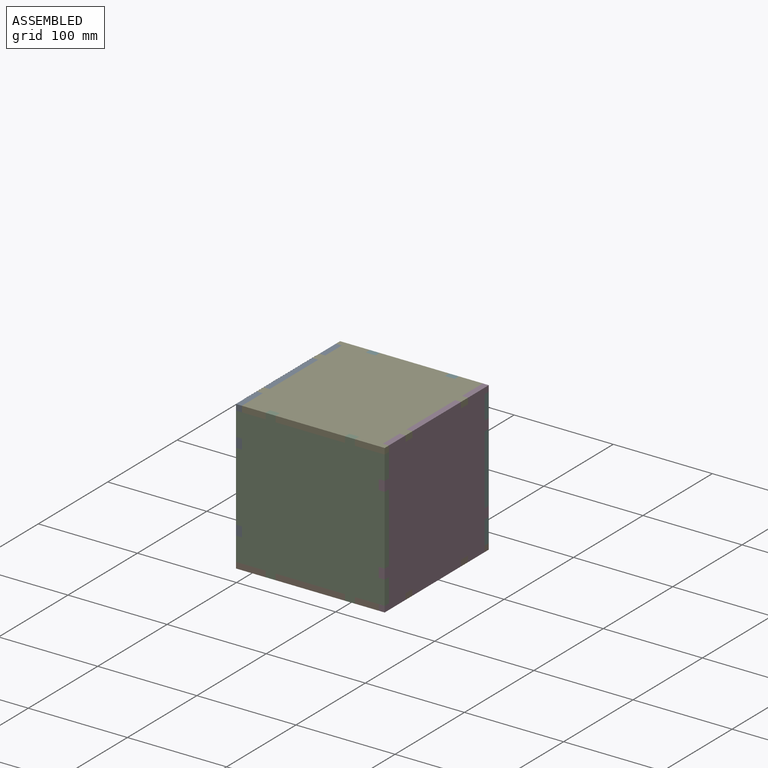
[diagram: assembled view]
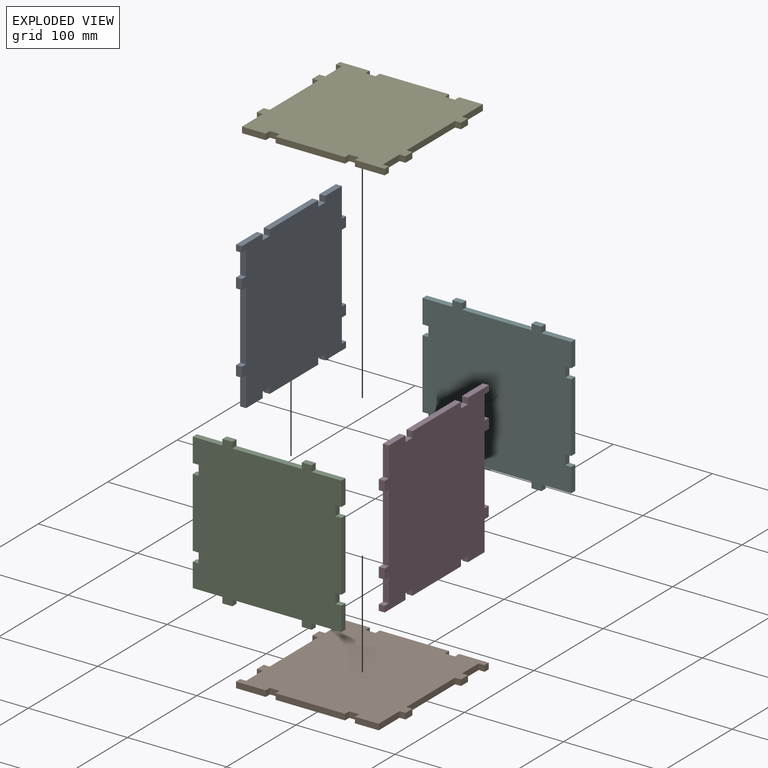
[diagram: exploded view]
GUIDED TOUR — MATED ASSEMBLY (Onshape document f970d1bed0f2af47fee9d589, AutoMate assembly f970d1bed0f2af47fee9d589_2a133aeb007b5c8988a93e6d_3a71e42d51a8dad765424fb4_default)

This assembly has 6 components, labeled P0..P5 below (a component is one placed occurrence of a part; the same part can appear more than once), held together by 5 mates. A mate is a constraint between two components; its type names the relative motion it leaves free:
  FASTENED — locks the two components together rigidly (no relative motion).
Axis/direction vectors are unit vectors and 'through' points are millimeter coordinates, both in the assembly's world frame.

MATES
  1. FASTENED "Fastened 1": P4 <-> P3, direction (0.000, 0.000, -1.000) through (72.96, -41.31, 140.80) mm
  2. FASTENED "Fastened 5": P2 <-> P4, direction (0.000, 1.000, 0.000) through (37.96, -70.31, 146.80) mm
  3. FASTENED "Fastened 2": P3 <-> P1, direction (0.000, 0.000, -1.000) through (72.96, -41.31, 2.80) mm
  4. FASTENED "Fastened 4": P0 <-> P1, direction (0.000, 0.000, -1.000) through (-77.04, 38.69, 2.80) mm
  5. FASTENED "Fastened 3": P5 <-> P1, direction (0.000, -1.000, 0.000) through (-42.04, 67.69, -3.20) mm

ASSEMBLY ORDER
  1. P3 — the base component [order verified]
  2. P0 [order verified]
  3. P2 [order verified]
  4. P4 [order verified]
  5. P5 [order verified]
  6. P1 [order verified]
Order-tag legend:
  [order verified] — this step's position reverses a verified removal order: the component was checked to insert without passing through the ones already placed.

Of the 6 components, 6 carry the full construction recipe — the FeatureScript program that regenerates the part's solid from scratch; the rest are supplied as boundary geometry only.
Each toured component is shown spotlighted twice — in the assembled view, then in the exploded view, where a leader line traces a displaced component back to its assembled socket (saturated green if recipe-attached, orange if geometry-only; every other component desaturated gray) — followed by its recipe or geometry summary and the mates that hold it.
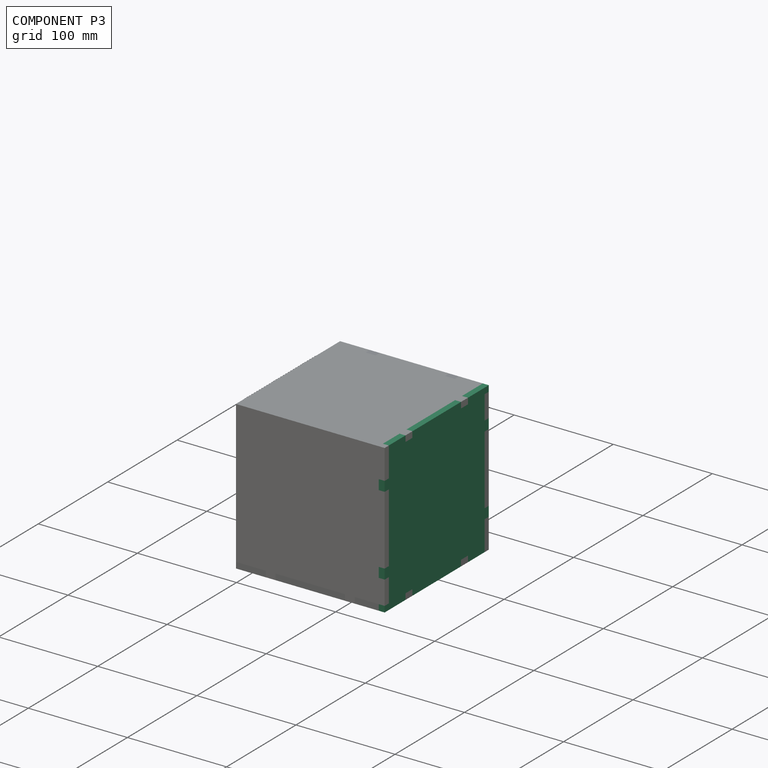
[diagram: component P3 — assembled]
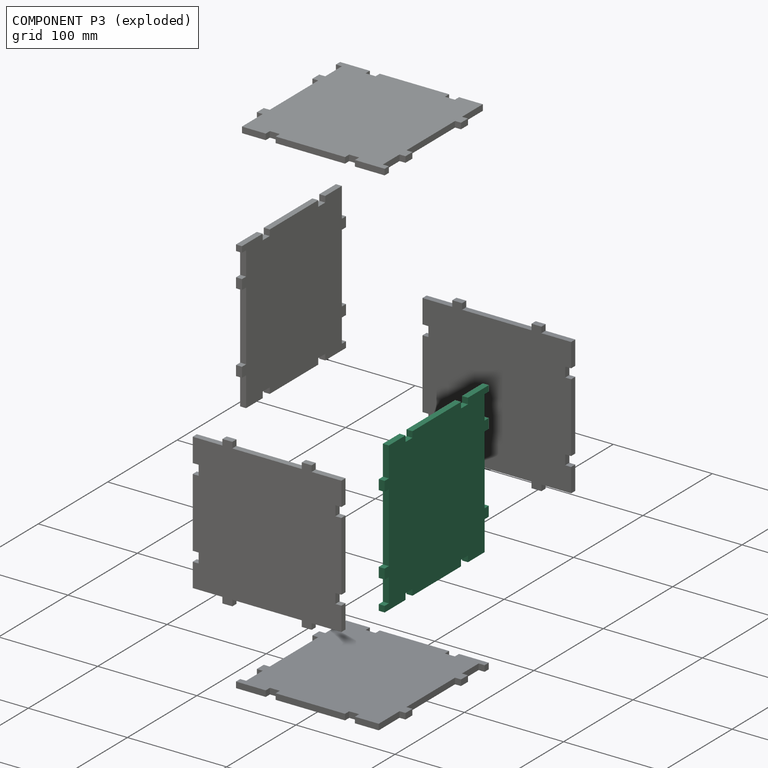
[diagram: component P3 — exploded]
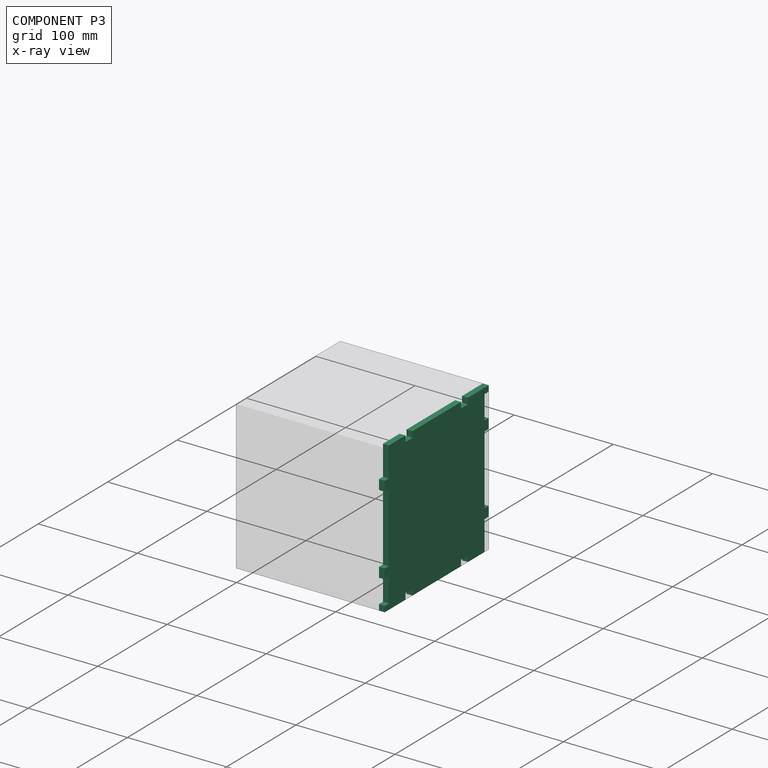
[diagram: component P3 — x-ray view]
COMPONENT P3 — same part as P0 (CADFS 00177313); its construction recipe is shown at P0.
Held by: FASTENED mate "Fastened 1" to P4; FASTENED mate "Fastened 2" to P1.
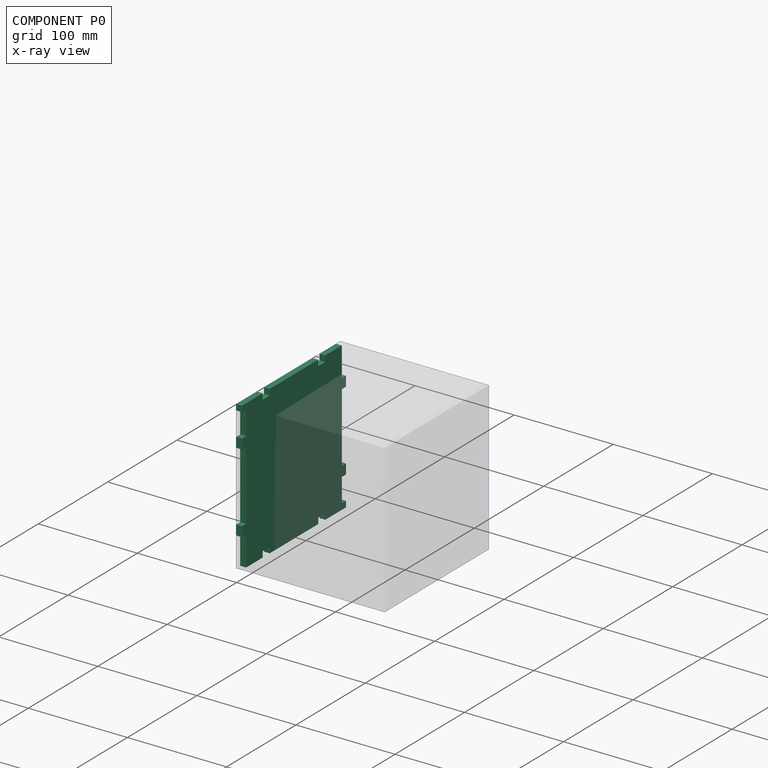
[diagram: component P0 — x-ray view]
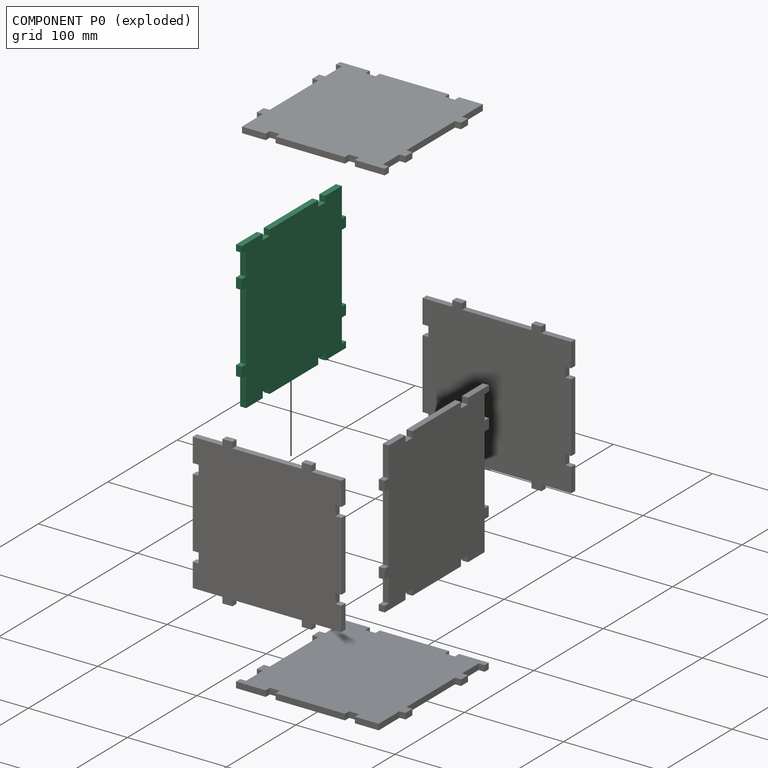
[diagram: component P0 — exploded]
COMPONENT P0 — recipe-attached (CADFS 00177313, mesh-verified: the recipe's output STEP matches this component's geometry to below the mesh-comparison resolution (tessellation chordal tolerance ~0.318 mm)).
Held by: FASTENED mate "Fastened 4" to P1.
Construction recipe (FeatureScript — the CAD program that rebuilds this solid; sketch coordinates are in the units given by the * unit suffixes, e.g. mm):

FeatureScript 1511;
import(path : "onshape/std/geometry.fs", version : "1511.0");
import(path : "onshape/std/common.fs", version : "1511.0");
const mm = millimeter;
const VERTEX = EntityType.VERTEX;
const EDGE = EntityType.EDGE;
const FACE = EntityType.FACE;
const BODY = EntityType.BODY;
function v(x, y){return vector(x, y);}
function OD(order){return orderDisambiguation(order);}
function OSD(set){return originalSetDisambiguation(set);}
function TD(topology){return topologyDisambiguation(topology);}
function TDD(query){return trueDependencyDisambiguation(query);}
function sQuery(a, b, c) {return sketchEntityQuery(a, b, c);}

annotation { "Feature Type Name" : "Feature", "Feature Type Description" : "" }
export const myFeature = defineFeature(function(context is Context, id is Id, definition is map)
    precondition{}
    {
        {
            var Q0;
            Q0=qCreatedBy(makeId("Top.planeOp"),FACE);
            var sketch = newSketch(context, id + "F0", { "sketchPlane" : qUnion([Q0])});
            skPoint(sketch, "E0.middle", {"position": v(0, 0) * mm});
            skLineSegment(sketch, "E1.bottom", {"start": v(69, -75) * mm, "end": v(-69, -75) * mm});
            skLineSegment(sketch, "E1.top", {"start": v(69, 75) * mm, "end": v(-69, 75) * mm});
            skLineSegment(sketch, "E1.left", {"start": v(69, -75) * mm, "end": v(69, 75) * mm});
            skLineSegment(sketch, "E1.right", {"start": v(-69, -75) * mm, "end": v(-69, 75) * mm});
            skLineSegment(sketch, "E2", {"start": v(-69, 75) * mm, "end": v(-45, 75) * mm, "construction": true});
            skLineSegment(sketch, "E3", {"start": v(-45, 75) * mm, "end": v(-45, 69) * mm});
            skLineSegment(sketch, "E4", {"start": v(-45, 69) * mm, "end": v(-35, 69) * mm});
            skLineSegment(sketch, "E5", {"start": v(-35, 69) * mm, "end": v(-35, 75) * mm});
            skLineSegment(sketch, "E6", {"start": v(0, 0) * mm, "end": v(-69, 0) * mm, "construction": true});
            skLineSegment(sketch, "E7", {"start": v(0, 0) * mm, "end": v(0, 75) * mm, "construction": true});
            skLineSegment(sketch, "E8.MirrorCS", {"start": v(45, 69) * mm, "end": v(35, 69) * mm});
            skLineSegment(sketch, "E9.MirrorCS", {"start": v(35, 69) * mm, "end": v(35, 75) * mm});
            skLineSegment(sketch, "E10.MirrorCS", {"start": v(45, 75) * mm, "end": v(45, 69) * mm});
            skLineSegment(sketch, "E11.MirrorCS", {"start": v(0, 0) * mm, "end": v(69, 0) * mm, "construction": true});
            skLineSegment(sketch, "E12.MirrorCS", {"start": v(-45, 63) * mm, "end": v(-45, 69) * mm});
            skLineSegment(sketch, "E13.MirrorCS", {"start": v(-45, -75) * mm, "end": v(-45, -69) * mm});
            skLineSegment(sketch, "E14.MirrorCS", {"start": v(-45, -69) * mm, "end": v(-35, -69) * mm});
            skLineSegment(sketch, "E15.MirrorCS", {"start": v(-35, -69) * mm, "end": v(-35, -75) * mm});
            skLineSegment(sketch, "E16.MirrorCS", {"start": v(35, -69) * mm, "end": v(35, -75) * mm});
            skLineSegment(sketch, "E17.MirrorCS", {"start": v(45, -69) * mm, "end": v(35, -69) * mm});
            skLineSegment(sketch, "E18.MirrorCS", {"start": v(45, -75) * mm, "end": v(45, -69) * mm});
            skLineSegment(sketch, "E19", {"start": v(-69, 75) * mm, "end": v(-69, 45) * mm});
            skLineSegment(sketch, "E20", {"start": v(-69, 45) * mm, "end": v(-75, 45) * mm});
            skLineSegment(sketch, "E21", {"start": v(-75, 45) * mm, "end": v(-75, 35) * mm});
            skLineSegment(sketch, "E22", {"start": v(-75, 35) * mm, "end": v(-69, 35) * mm});
            skLineSegment(sketch, "E23.MirrorCS", {"start": v(-75, -35) * mm, "end": v(-69, -35) * mm});
            skLineSegment(sketch, "E24.MirrorCS", {"start": v(-75, -45) * mm, "end": v(-75, -35) * mm});
            skLineSegment(sketch, "E25.MirrorCS", {"start": v(-69, -45) * mm, "end": v(-75, -45) * mm});
            skLineSegment(sketch, "E26.MirrorCS", {"start": v(69, 45) * mm, "end": v(75, 45) * mm});
            skLineSegment(sketch, "E27.MirrorCS", {"start": v(75, 45) * mm, "end": v(75, 35) * mm});
            skLineSegment(sketch, "E28.MirrorCS", {"start": v(75, 35) * mm, "end": v(69, 35) * mm});
            skLineSegment(sketch, "E29.MirrorCS", {"start": v(75, -35) * mm, "end": v(69, -35) * mm});
            skLineSegment(sketch, "E30.MirrorCS", {"start": v(75, -45) * mm, "end": v(75, -35) * mm});
            skLineSegment(sketch, "E31.MirrorCS", {"start": v(69, -45) * mm, "end": v(75, -45) * mm});
            skLineSegment(sketch, "E32", {"start": v(-69, -75) * mm, "end": v(-75, -75) * mm});
            skLineSegment(sketch, "E33", {"start": v(-75, -75) * mm, "end": v(-75, -69) * mm});
            skLineSegment(sketch, "E34", {"start": v(-75, -69) * mm, "end": v(-69, -69) * mm});
            skLineSegment(sketch, "E35.MirrorCS", {"start": v(-75, 75) * mm, "end": v(-75, 69) * mm});
            skLineSegment(sketch, "E36.MirrorCS", {"start": v(-69, 75) * mm, "end": v(-75, 75) * mm});
            skLineSegment(sketch, "E37.MirrorCS", {"start": v(-75, 69) * mm, "end": v(-69, 69) * mm});
            skLineSegment(sketch, "E38.MirrorCS", {"start": v(69, -75) * mm, "end": v(75, -75) * mm});
            skLineSegment(sketch, "E39.MirrorCS", {"start": v(75, -75) * mm, "end": v(75, -69) * mm});
            skLineSegment(sketch, "E40.MirrorCS", {"start": v(75, -69) * mm, "end": v(69, -69) * mm});
            skLineSegment(sketch, "E41.MirrorCS", {"start": v(69, 75) * mm, "end": v(75, 75) * mm});
            skLineSegment(sketch, "E42.MirrorCS", {"start": v(75, 75) * mm, "end": v(75, 69) * mm});
            skLineSegment(sketch, "E43.MirrorCS", {"start": v(75, 69) * mm, "end": v(69, 69) * mm});
            skSolve(sketch);
        }
        {
            var Q0;
            {var subQ0=sQuery(id+"F0.wireOp",EDGE,"E20");Q0=makeQuery(id+"F0.imprint","IMPRINT",FACE,{"disambiguationData":[TD([[makeQuery(id+"F0.imprint","IMPRINT",EDGE,{"derivedFrom":subQ0}),1.0]])]});}
            var Q1;
            {var subQ3=sQuery(id+"F0.wireOp",EDGE,"E3");Q1=makeQuery(id+"F0.imprint","IMPRINT",FACE,{"disambiguationData":[TD([[makeQuery(id+"F0.imprint","IMPRINT",EDGE,{"derivedFrom":subQ3}),-1.0]])]});}
            var Q2;
            {var subQ0=sQuery(id+"F0.wireOp",EDGE,"E23.MirrorCS");Q2=makeQuery(id+"F0.imprint","IMPRINT",FACE,{"disambiguationData":[TD([[makeQuery(id+"F0.imprint","IMPRINT",EDGE,{"derivedFrom":subQ0}),-1.0]])]});}
            var Q3;
            {var subQ0=sQuery(id+"F0.wireOp",EDGE,"E29.MirrorCS");Q3=makeQuery(id+"F0.imprint","IMPRINT",FACE,{"disambiguationData":[TD([[makeQuery(id+"F0.imprint","IMPRINT",EDGE,{"derivedFrom":subQ0}),1.0]])]});}
            var Q4;
            {var subQ0=sQuery(id+"F0.wireOp",EDGE,"E26.MirrorCS");Q4=makeQuery(id+"F0.imprint","IMPRINT",FACE,{"disambiguationData":[TD([[makeQuery(id+"F0.imprint","IMPRINT",EDGE,{"derivedFrom":subQ0}),-1.0]])]});}
            var Q5;
            {var subQ0=sQuery(id+"F0.wireOp",EDGE,"E32");Q5=makeQuery(id+"F0.imprint","IMPRINT",FACE,{"disambiguationData":[TD([[makeQuery(id+"F0.imprint","IMPRINT",EDGE,{"derivedFrom":subQ0}),-1.0]])]});}
            var Q6;
            {var subQ0=sQuery(id+"F0.wireOp",EDGE,"E41.MirrorCS");Q6=makeQuery(id+"F0.imprint","IMPRINT",FACE,{"disambiguationData":[TD([[makeQuery(id+"F0.imprint","IMPRINT",EDGE,{"derivedFrom":subQ0}),-1.0]])]});}
            extrude(context, id + "F1", {"entities" : qUnion([Q0, Q1, Q2, Q3, Q4, Q5, Q6]), "depth" : 6 * mm});
        }
    });
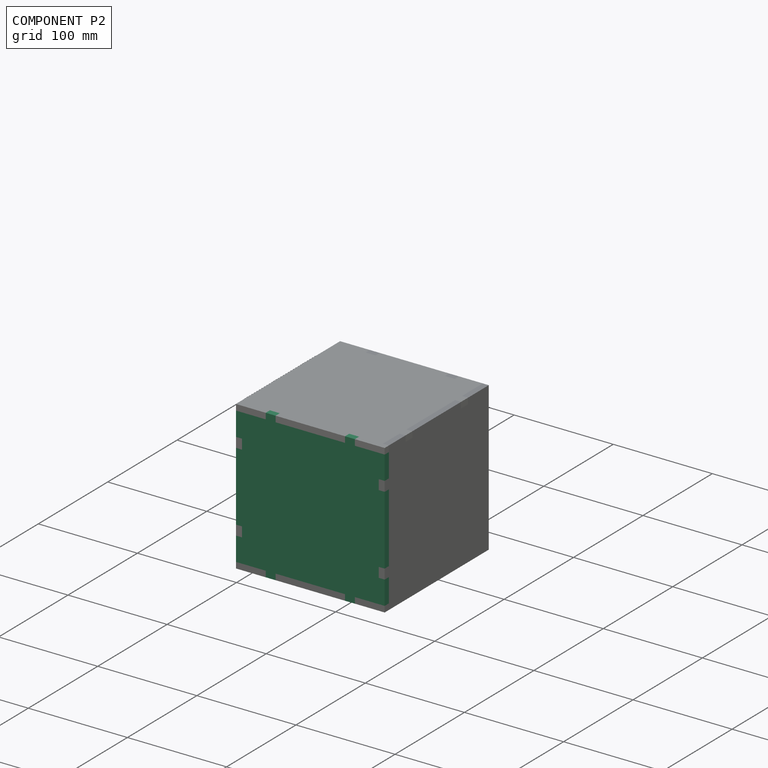
[diagram: component P2 — assembled]
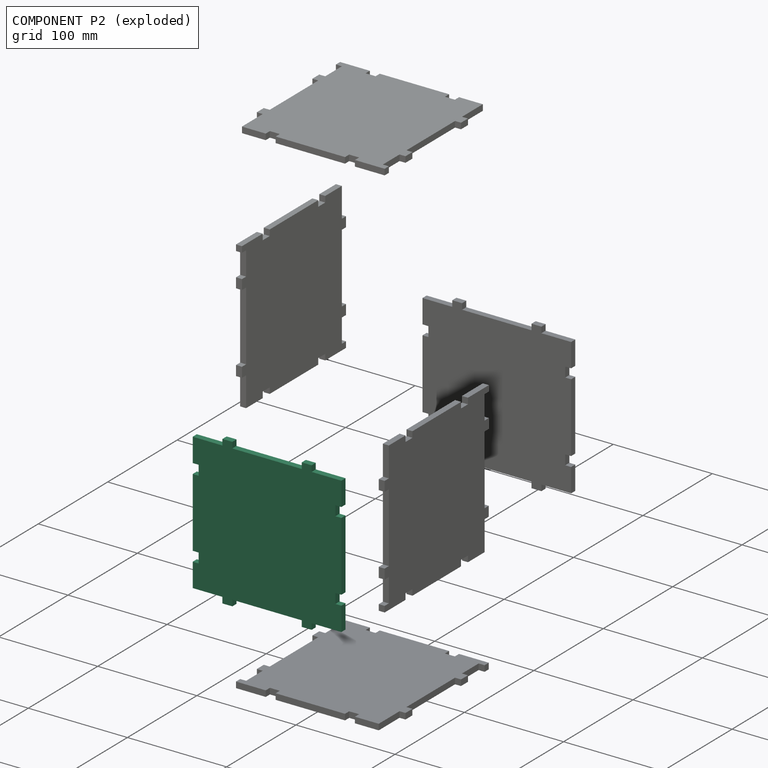
[diagram: component P2 — exploded]
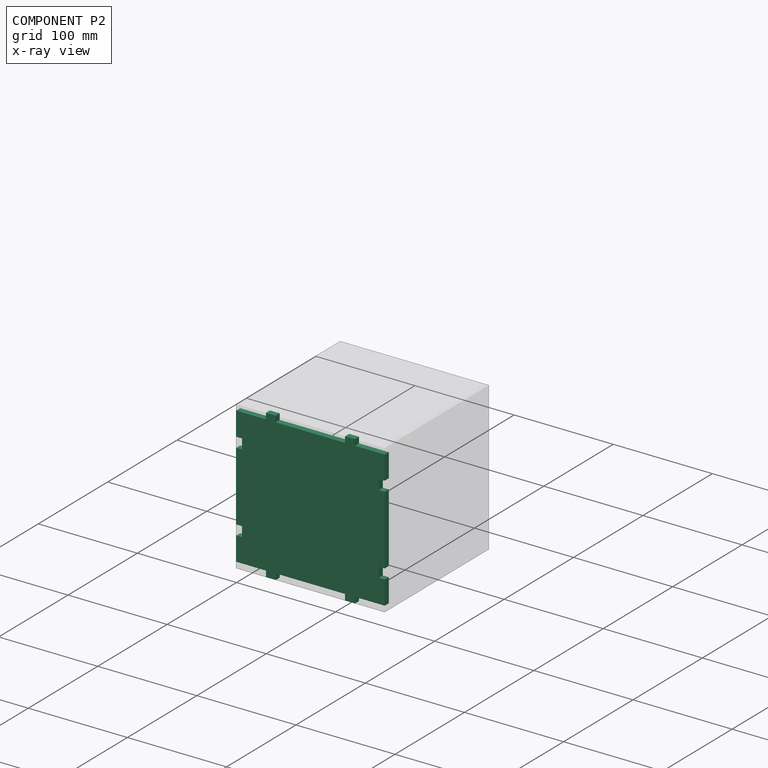
[diagram: component P2 — x-ray view]
COMPONENT P2 — recipe-attached (CADFS 00177314, mesh-verified: the recipe's output STEP matches this component's geometry to below the mesh-comparison resolution (tessellation chordal tolerance ~0.318 mm)).
Held by: FASTENED mate "Fastened 5" to P4.
Construction recipe (FeatureScript — the CAD program that rebuilds this solid; sketch coordinates are in the units given by the * unit suffixes, e.g. mm):

FeatureScript 1511;
import(path : "onshape/std/geometry.fs", version : "1511.0");
import(path : "onshape/std/common.fs", version : "1511.0");
const mm = millimeter;
const VERTEX = EntityType.VERTEX;
const EDGE = EntityType.EDGE;
const FACE = EntityType.FACE;
const BODY = EntityType.BODY;
function v(x, y){return vector(x, y);}
function OD(order){return orderDisambiguation(order);}
function OSD(set){return originalSetDisambiguation(set);}
function TD(topology){return topologyDisambiguation(topology);}
function TDD(query){return trueDependencyDisambiguation(query);}
function sQuery(a, b, c) {return sketchEntityQuery(a, b, c);}

annotation { "Feature Type Name" : "Feature", "Feature Type Description" : "" }
export const myFeature = defineFeature(function(context is Context, id is Id, definition is map)
    precondition{}
    {
        {
            var Q0;
            Q0=qCreatedBy(makeId("Top.planeOp"),FACE);
            var sketch = newSketch(context, id + "F0", { "sketchPlane" : qUnion([Q0])});
            skPoint(sketch, "E0.middle", {"position": v(4.2, -4.87) * mm});
            skLineSegment(sketch, "E1.bottom", {"start": v(73.2, -79.87) * mm, "end": v(-64.8, -79.87) * mm});
            skLineSegment(sketch, "E1.top", {"start": v(73.2, 70.13) * mm, "end": v(-64.8, 70.13) * mm});
            skLineSegment(sketch, "E1.left", {"start": v(73.2, -79.87) * mm, "end": v(73.2, 70.13) * mm});
            skLineSegment(sketch, "E1.right", {"start": v(-64.8, -79.87) * mm, "end": v(-64.8, 70.13) * mm});
            skLineSegment(sketch, "E2", {"start": v(-64.8, 70.13) * mm, "end": v(-40.8, 70.13) * mm, "construction": true});
            skLineSegment(sketch, "E3", {"start": v(-40.8, 70.13) * mm, "end": v(-40.8, 64.13) * mm});
            skLineSegment(sketch, "E4", {"start": v(-40.8, 64.13) * mm, "end": v(-30.8, 64.13) * mm});
            skLineSegment(sketch, "E5", {"start": v(-30.8, 64.13) * mm, "end": v(-30.8, 70.13) * mm});
            skLineSegment(sketch, "E6", {"start": v(4.2, -4.87) * mm, "end": v(-64.8, -4.87) * mm, "construction": true});
            skLineSegment(sketch, "E7", {"start": v(4.2, -4.87) * mm, "end": v(4.2, 70.13) * mm, "construction": true});
            skLineSegment(sketch, "E8.MirrorCS", {"start": v(49.2, 64.13) * mm, "end": v(39.2, 64.13) * mm});
            skLineSegment(sketch, "E9.MirrorCS", {"start": v(39.2, 64.13) * mm, "end": v(39.2, 70.13) * mm});
            skLineSegment(sketch, "E10.MirrorCS", {"start": v(49.2, 70.13) * mm, "end": v(49.2, 64.13) * mm});
            skLineSegment(sketch, "E11.MirrorCS", {"start": v(4.2, -4.87) * mm, "end": v(73.2, -4.87) * mm, "construction": true});
            skLineSegment(sketch, "E12.MirrorCS", {"start": v(-40.8, 58.13) * mm, "end": v(-40.8, 64.13) * mm});
            skLineSegment(sketch, "E13.MirrorCS", {"start": v(-40.8, -79.87) * mm, "end": v(-40.8, -73.87) * mm});
            skLineSegment(sketch, "E14.MirrorCS", {"start": v(-40.8, -73.87) * mm, "end": v(-30.8, -73.87) * mm});
            skLineSegment(sketch, "E15.MirrorCS", {"start": v(-30.8, -73.87) * mm, "end": v(-30.8, -79.87) * mm});
            skLineSegment(sketch, "E16.MirrorCS", {"start": v(39.2, -73.87) * mm, "end": v(39.2, -79.87) * mm});
            skLineSegment(sketch, "E17.MirrorCS", {"start": v(49.2, -73.87) * mm, "end": v(39.2, -73.87) * mm});
            skLineSegment(sketch, "E18.MirrorCS", {"start": v(49.2, -79.87) * mm, "end": v(49.2, -73.87) * mm});
            skLineSegment(sketch, "E19", {"start": v(-64.8, 70.13) * mm, "end": v(-64.8, 40.13) * mm});
            skLineSegment(sketch, "E20", {"start": v(-64.8, 40.13) * mm, "end": v(-70.8, 40.13) * mm});
            skLineSegment(sketch, "E21", {"start": v(-70.8, 40.13) * mm, "end": v(-70.8, 30.13) * mm});
            skLineSegment(sketch, "E22", {"start": v(-70.8, 30.13) * mm, "end": v(-64.8, 30.13) * mm});
            skLineSegment(sketch, "E23.MirrorCS", {"start": v(-70.8, -39.87) * mm, "end": v(-64.8, -39.87) * mm});
            skLineSegment(sketch, "E24.MirrorCS", {"start": v(-70.8, -49.87) * mm, "end": v(-70.8, -39.87) * mm});
            skLineSegment(sketch, "E25.MirrorCS", {"start": v(-64.8, -49.87) * mm, "end": v(-70.8, -49.87) * mm});
            skLineSegment(sketch, "E26.MirrorCS", {"start": v(73.2, 40.13) * mm, "end": v(79.2, 40.13) * mm});
            skLineSegment(sketch, "E27.MirrorCS", {"start": v(79.2, 40.13) * mm, "end": v(79.2, 30.13) * mm});
            skLineSegment(sketch, "E28.MirrorCS", {"start": v(79.2, 30.13) * mm, "end": v(73.2, 30.13) * mm});
            skLineSegment(sketch, "E29.MirrorCS", {"start": v(79.2, -39.87) * mm, "end": v(73.2, -39.87) * mm});
            skLineSegment(sketch, "E30.MirrorCS", {"start": v(79.2, -49.87) * mm, "end": v(79.2, -39.87) * mm});
            skLineSegment(sketch, "E31.MirrorCS", {"start": v(73.2, -49.87) * mm, "end": v(79.2, -49.87) * mm});
            skLineSegment(sketch, "E32", {"start": v(-64.8, -79.87) * mm, "end": v(-70.8, -79.87) * mm});
            skLineSegment(sketch, "E33", {"start": v(-70.8, -79.87) * mm, "end": v(-70.8, -73.87) * mm});
            skLineSegment(sketch, "E34", {"start": v(-70.8, -73.87) * mm, "end": v(-64.8, -73.87) * mm});
            skLineSegment(sketch, "E35.MirrorCS", {"start": v(-70.8, 70.13) * mm, "end": v(-70.8, 64.13) * mm});
            skLineSegment(sketch, "E36.MirrorCS", {"start": v(-64.8, 70.13) * mm, "end": v(-70.8, 70.13) * mm});
            skLineSegment(sketch, "E37.MirrorCS", {"start": v(-70.8, 64.13) * mm, "end": v(-64.8, 64.13) * mm});
            skLineSegment(sketch, "E38.MirrorCS", {"start": v(73.2, -79.87) * mm, "end": v(79.2, -79.87) * mm});
            skLineSegment(sketch, "E39.MirrorCS", {"start": v(79.2, -79.87) * mm, "end": v(79.2, -73.87) * mm});
            skLineSegment(sketch, "E40.MirrorCS", {"start": v(79.2, -73.87) * mm, "end": v(73.2, -73.87) * mm});
            skLineSegment(sketch, "E41.MirrorCS", {"start": v(73.2, 70.13) * mm, "end": v(79.2, 70.13) * mm});
            skLineSegment(sketch, "E42.MirrorCS", {"start": v(79.2, 70.13) * mm, "end": v(79.2, 64.13) * mm});
            skLineSegment(sketch, "E43.MirrorCS", {"start": v(79.2, 64.13) * mm, "end": v(73.2, 64.13) * mm});
            skSolve(sketch);
        }
        {
            var Q0;
            {var subQ6=sQuery(id+"F0.wireOp",EDGE,"E3");Q0=makeQuery(id+"F0.imprint","IMPRINT",FACE,{"disambiguationData":[TD([[makeQuery(id+"F0.imprint","IMPRINT",EDGE,{"derivedFrom":subQ6}),-1.0]])]});}
            var Q1;
            {var subQ0=sQuery(id+"F0.wireOp",EDGE,"E20");Q1=makeQuery(id+"F0.imprint","IMPRINT",FACE,{"disambiguationData":[TD([[makeQuery(id+"F0.imprint","IMPRINT",EDGE,{"derivedFrom":subQ0}),1.0]])]});}
            var Q2;
            {var subQ0=sQuery(id+"F0.wireOp",EDGE,"E23.MirrorCS");Q2=makeQuery(id+"F0.imprint","IMPRINT",FACE,{"disambiguationData":[TD([[makeQuery(id+"F0.imprint","IMPRINT",EDGE,{"derivedFrom":subQ0}),-1.0]])]});}
            var Q3;
            {var subQ0=sQuery(id+"F0.wireOp",EDGE,"E29.MirrorCS");Q3=makeQuery(id+"F0.imprint","IMPRINT",FACE,{"disambiguationData":[TD([[makeQuery(id+"F0.imprint","IMPRINT",EDGE,{"derivedFrom":subQ0}),1.0]])]});}
            var Q4;
            {var subQ0=sQuery(id+"F0.wireOp",EDGE,"E26.MirrorCS");Q4=makeQuery(id+"F0.imprint","IMPRINT",FACE,{"disambiguationData":[TD([[makeQuery(id+"F0.imprint","IMPRINT",EDGE,{"derivedFrom":subQ0}),-1.0]])]});}
            extrude(context, id + "F1", {"entities" : qUnion([Q0, Q1, Q2, Q3, Q4]), "depth" : 6 * mm});
        }
    });
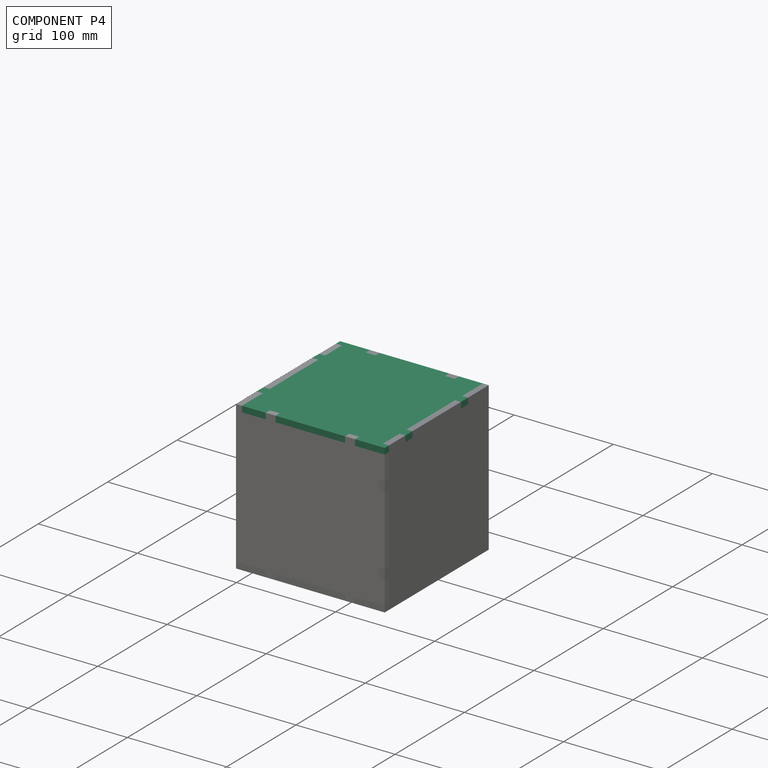
[diagram: component P4 — assembled]
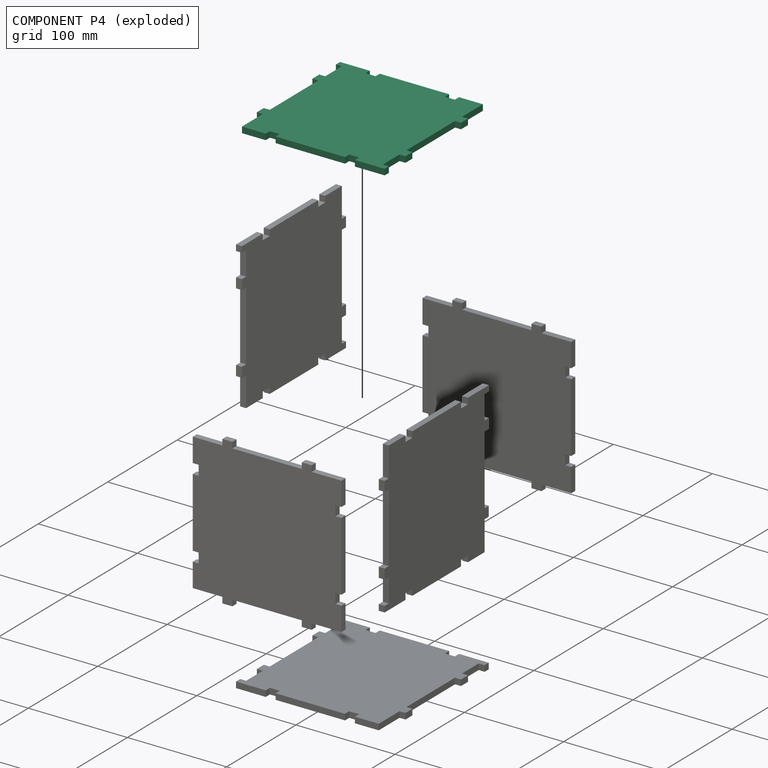
[diagram: component P4 — exploded]
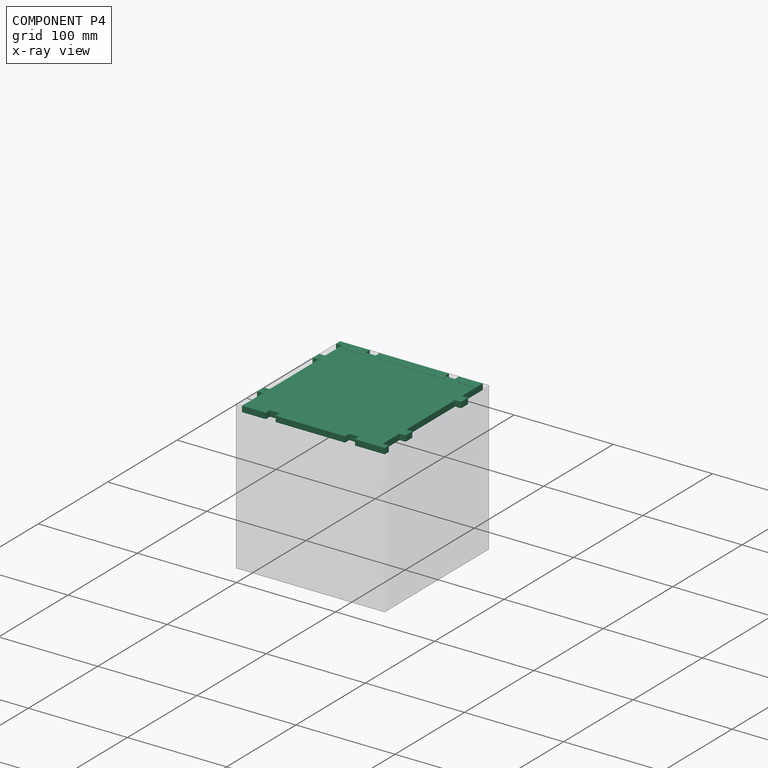
[diagram: component P4 — x-ray view]
COMPONENT P4 — same part as P0 (CADFS 00177313); its construction recipe is shown at P0.
Held by: FASTENED mate "Fastened 1" to P3; FASTENED mate "Fastened 5" to P2.
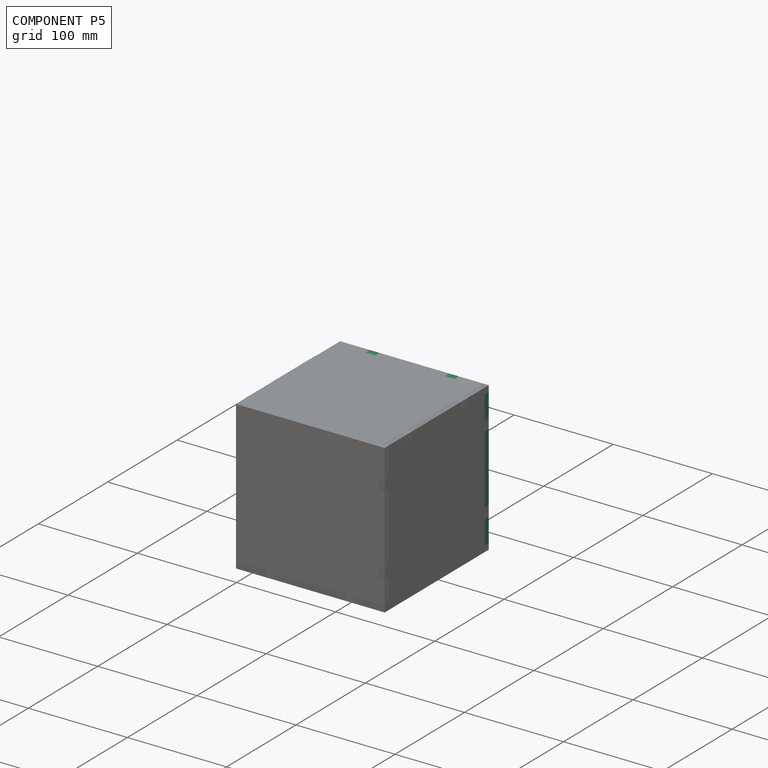
[diagram: component P5 — assembled]
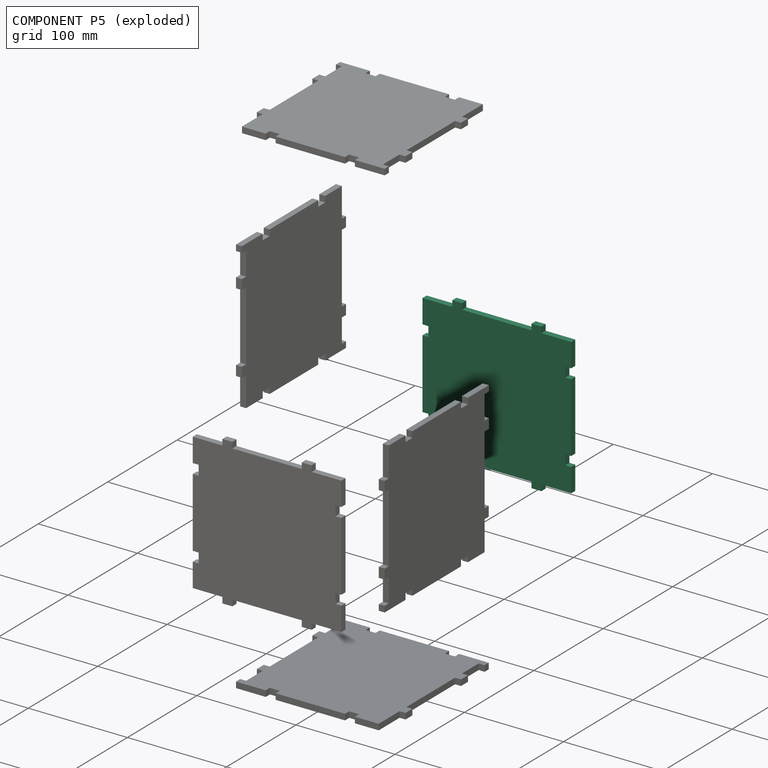
[diagram: component P5 — exploded]
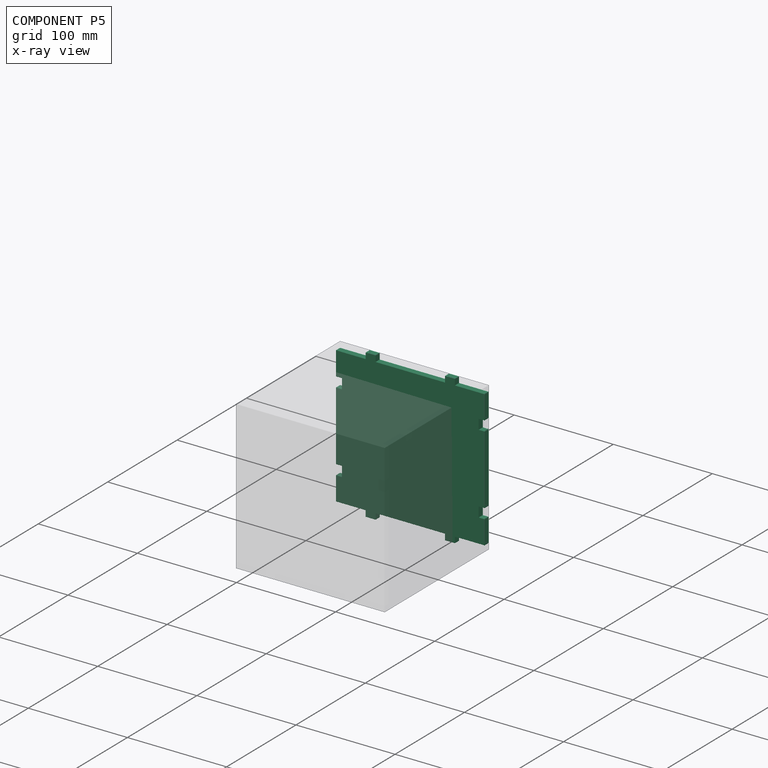
[diagram: component P5 — x-ray view]
COMPONENT P5 — same part as P2 (CADFS 00177314); its construction recipe is shown at P2.
Held by: FASTENED mate "Fastened 3" to P1.
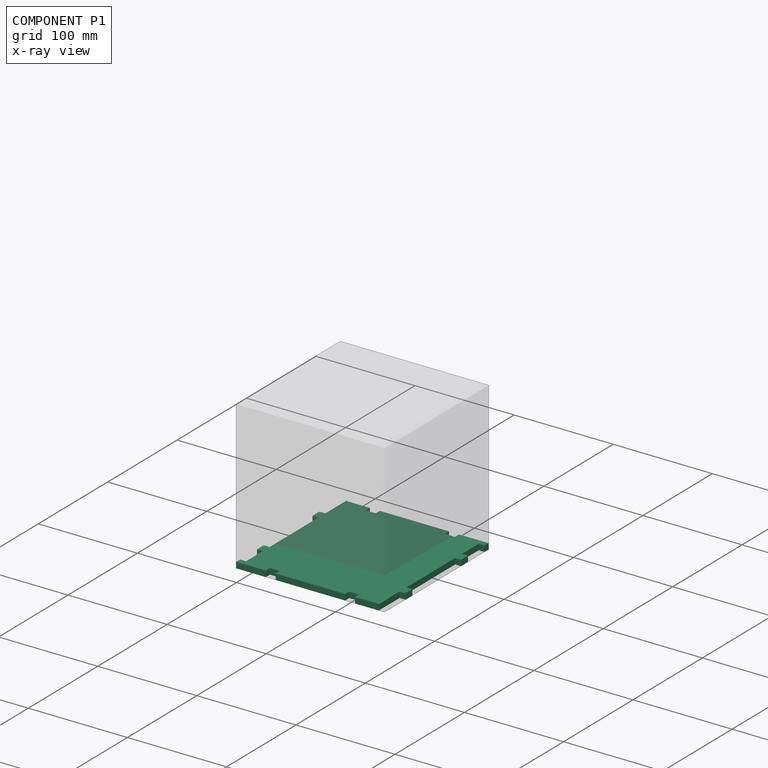
[diagram: component P1 — x-ray view]
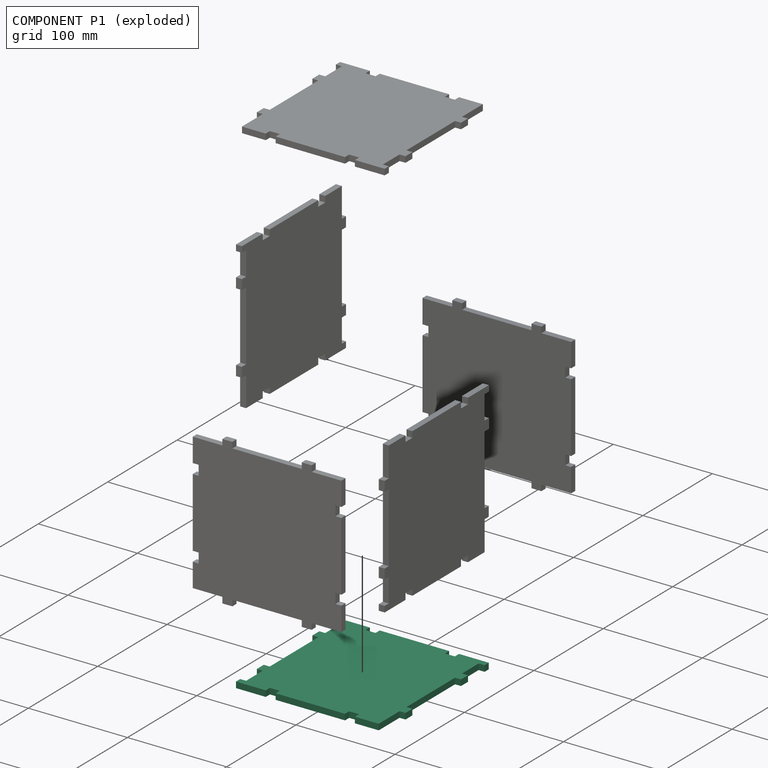
[diagram: component P1 — exploded]
COMPONENT P1 — same part as P0 (CADFS 00177313); its construction recipe is shown at P0.
Held by: FASTENED mate "Fastened 2" to P3; FASTENED mate "Fastened 4" to P0; FASTENED mate "Fastened 3" to P5.
PROVENANCE & LICENSES
Assembly (occurrences, transforms, mates, per-part STEP geometry): AutoMate dataset, Zenodo record 7776208, CC0.
Construction recipes: CADFS (HuggingFace VladPyatov/CADFS, CC-BY-4.0, layered over the ABC dataset), FeatureScript reconstruction programs keyed by ABC model id.
Join: ABC meta listings map ABC model id -> Onshape documentId; within a shared document, parts are matched by geometric signature (bounding-box dims + volume at 0.1% relative tolerance, exact B-rep face/solid counts).
Verification: 6 of this assembly's 6 components carry a recipe attachment, and every attachment is mesh-verified: the CADFS STEP and the AutoMate member STEP were compared as meshes in their shared local frame (symmetric sampled-point-to-mesh distance); worst across the 6 attachments: below the mesh-comparison resolution (tessellation chordal tolerance ~0.318 mm) on a 212 mm part.
Renders: orthographic iso camera (az 35 / el 25); the floor grid conveys scale (grid pitch printed in each image; no ruler). In the exploded view each component is displaced by its stored offset vector: the offsets alone carry the explosion direction (mate normal/axis signs are not orientation cues and do not encode it), and separation distances are assigned per mate-chain, not proportionally to assembly-order depth.
